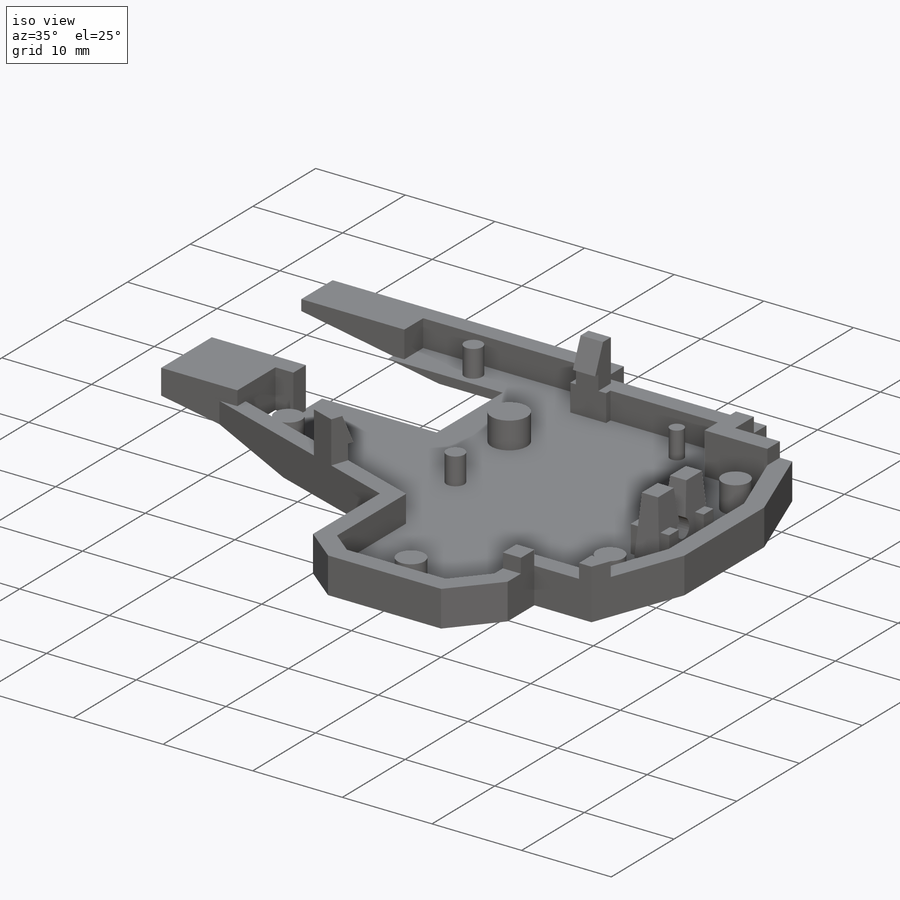
[diagram: iso view]
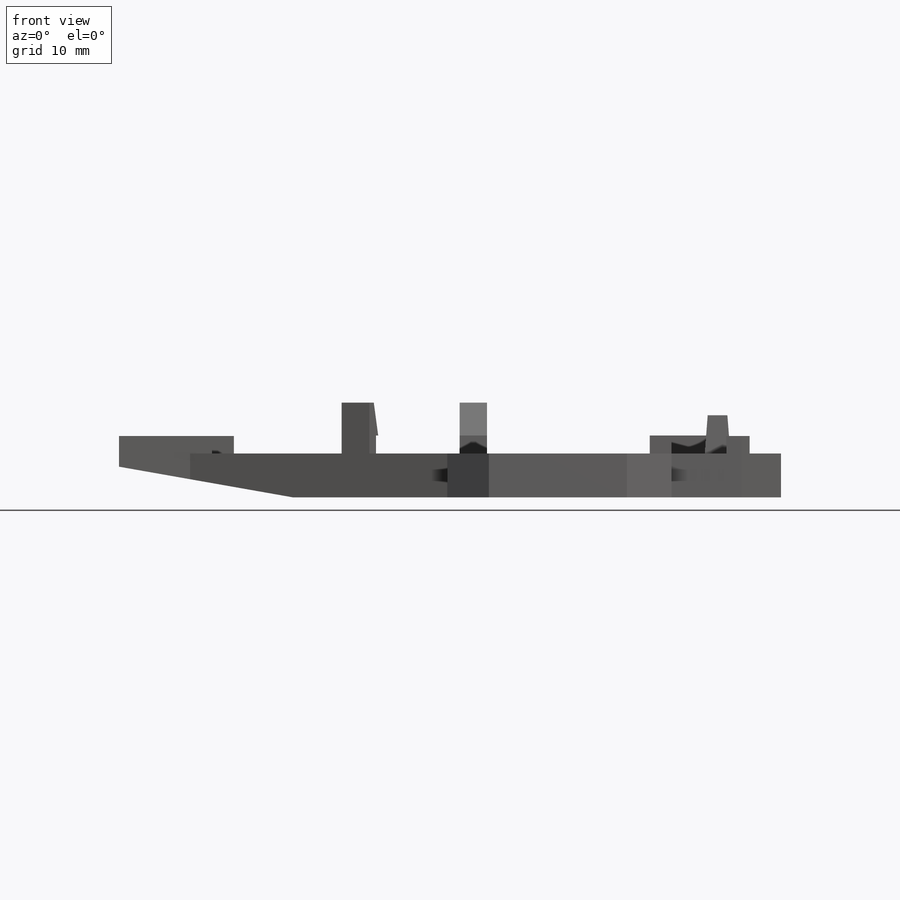
[diagram: front view]
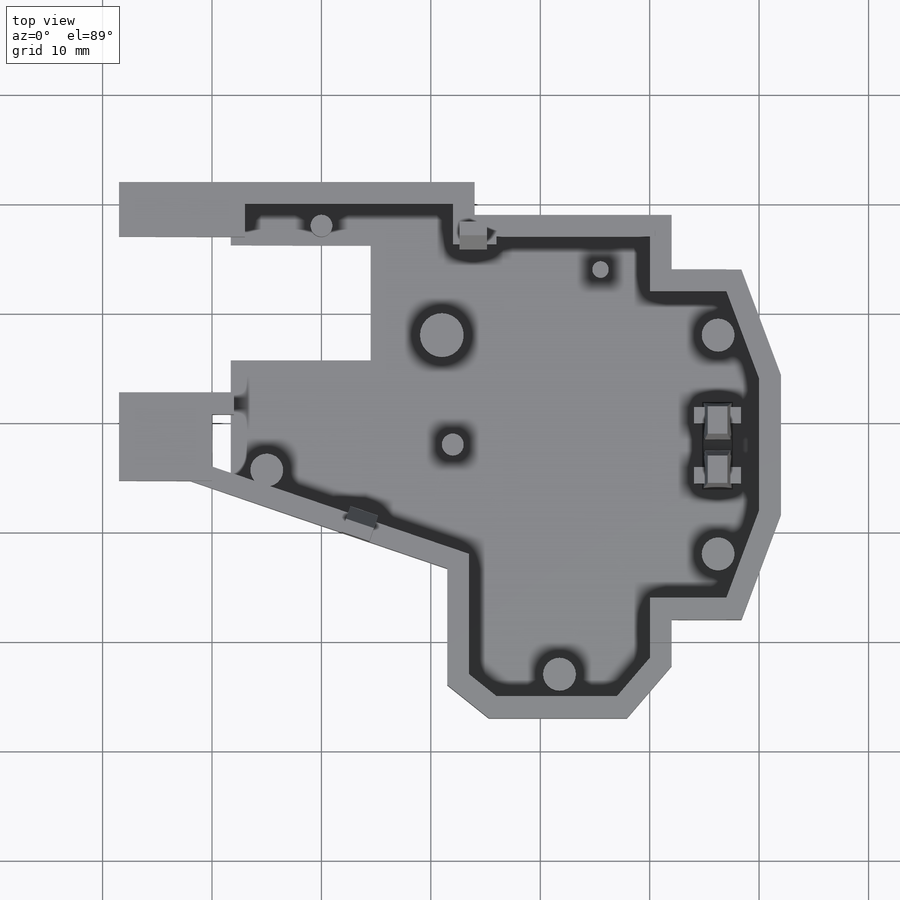
[diagram: top view]
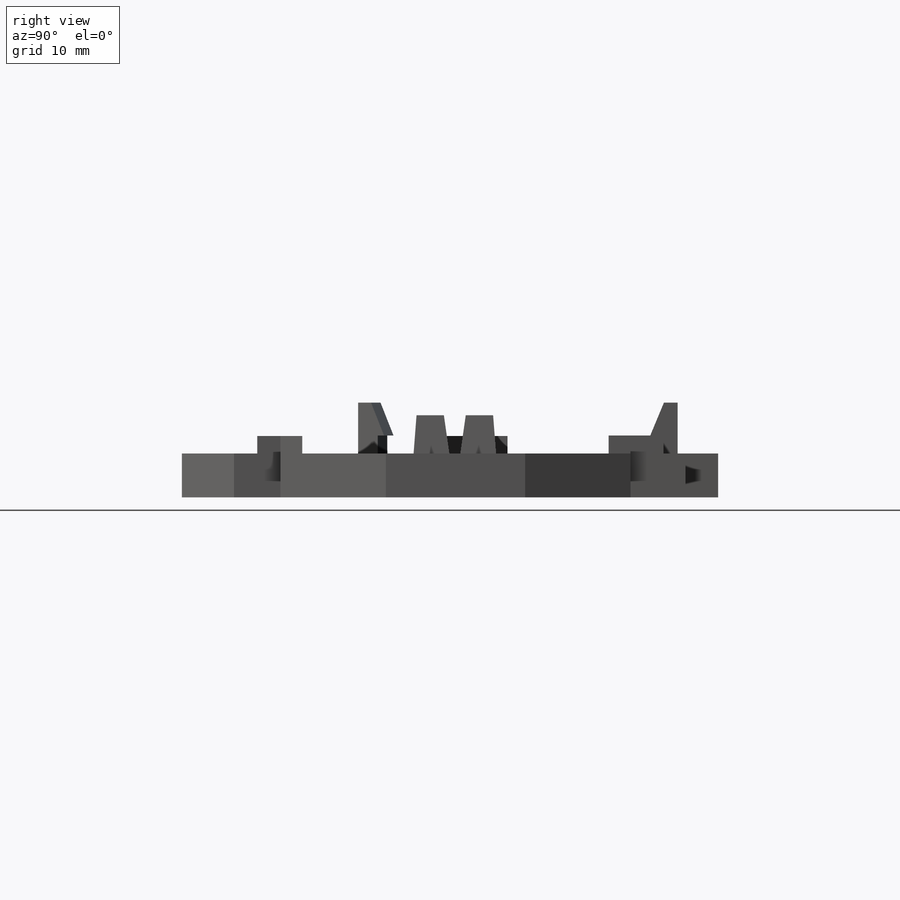
[diagram: right view]
SOLIDWORKS PART (.sldprt)
format: sldprt  version: not decoded by parser v0  size: 1,748,480 bytes
history: native  units: mm
features: sketch x81, extrude x42, cut_extrude x34, fillet x2, material x1, plane x1 (+12 scaffold rows collapsed)
feature tree (173):
  scaffold x12  (default folders/planes/origin — collapsed)
  material  "Material <not specified>"
  sketch  "Sketch13"  dims[c1.D1=45.0mm c1.D2=61.0mm c2.D1=50.0mm]
  extrude  "Boss-Extrude4"  Depth=1.6mm
  sketch  "Sketch14"  dims[D1=10.0mm D2=8.0mm]
  cut_extrude  "Cut-Extrude6"  [1 undecoded]
  sketch  "Sketch15"  dims[D1=3.0mm]
  cut_extrude  "Cut-Extrude7"  [1 undecoded]
  sketch  "Sketch16"  dims[D1=0.7mm D2=4.0mm]
  cut_extrude  "Cut-Extrude8"  [1 undecoded]
  sketch  "Sketch17"  dims[D1=7.0mm]
  cut_extrude  "Cut-Extrude9"  [1 undecoded]
  sketch  "Sketch18"  dims[D1=28.0mm]
  cut_extrude  "Cut-Extrude10"  [1 undecoded]
  sketch  "Sketch21"  dims[D1=8.0mm]
  cut_extrude  "Cut-Extrude11"  [1 undecoded]
  sketch  "Sketch22"  dims[D1=2.0mm D2=3.0mm]
  cut_extrude  "Cut-Extrude12"  [1 undecoded]
  sketch  "Sketch23"  dims[D1=4.0mm]
  cut_extrude  "Cut-Extrude13"  [1 undecoded]
  sketch  "Sketch24"  dims[D1=11.0mm]
  cut_extrude  "Cut-Extrude14"  [1 undecoded]
  sketch  "Sketch25"  dims[D1=2.8mm D2=8.0mm]
  cut_extrude  "Cut-Extrude15"  [1 undecoded]
  sketch  "Sketch28"  dims[D1=2.0mm]
  extrude  "Boss-Extrude6"  Depth=6mm
  sketch  "Sketch30"  dims[D1=0.0mm]
  extrude  "Boss-Extrude7"  Depth=3.5mm
  sketch  "Sketch31"  dims[D1=0.0mm]
  cut_extrude  "Cut-Extrude16"  Depth=4.6mm
  sketch  "Sketch32"  dims[D1=0.0mm]
  extrude  "Boss-Extrude8"  Depth=4.6mm
  sketch  "Sketch35"  dims[D1=0.5mm]
  cut_extrude  "Cut-Extrude18"  Depth=4.6mm
  sketch  "Sketch37"  dims[D1=1.0mm]
  cut_extrude  "Cut-Extrude19"  Depth=4.6mm
  sketch  "Sketch39"  dims[D1=0.5mm]
  cut_extrude  "Cut-Extrude20"  Depth=4.6mm
  sketch  "Sketch41"  dims[D1=0.5mm]
  cut_extrude  "Cut-Extrude21"  [1 undecoded]
  sketch  "Sketch43"
  extrude  "Boss-Extrude9"  Depth=4.6mm
  sketch  "Sketch44"  dims[D1=1.5mm]
  extrude  "Boss-Extrude11"  Depth=3mm
  sketch  "Sketch45"  dims[D1=5.0mm]
  extrude  "Boss-Extrude12"  Depth=3mm
  sketch  "Sketch46"  dims[D1=2.5mm]
  extrude  "Boss-Extrude13"  Depth=1.65mm
  sketch  "Sketch47"
  extrude  "Boss-Extrude14"  [1 undecoded]
  sketch  "Sketch48"
  cut_extrude  "Cut-Extrude22"  [1 undecoded]
  sketch  "Sketch49"
  extrude  "Boss-Extrude15"  Depth=13mm
  sketch  "Sketch50"
  extrude  "Boss-Extrude16"  [1 undecoded]
  sketch  "Sketch51"
  extrude  "Boss-Extrude17"  Depth=15.6mm
  sketch  "Sketch52"  dims[D1=0.0mm]
  cut_extrude  "Cut-Extrude23"  [1 undecoded]
  sketch  "Sketch53"
  extrude  "Boss-Extrude18"  Depth=1.6mm
  sketch  "Sketch55"  dims[D1=2.5mm]
  extrude  "Boss-Extrude20"  Depth=3mm
  sketch  "Sketch56"
  cut_extrude  "Cut-Extrude24"  Depth=3mm
  sketch  "Sketch58"  dims[c1.D1=10.5mm c1.D2=8.5mm c1.D3=20.0mm c2.D1=2.0mm]
  cut_extrude  "Cut-Extrude29"  Depth=1mm
  sketch  "Sketch60"  dims[D1=24.0mm]
  extrude  "Boss-Extrude21"  [1 undecoded]
  sketch  "Sketch61"  dims[D1=0.0mm]
  extrude  "Boss-Extrude22"  [1 undecoded]
  sketch  "Sketch62"  dims[D1=2.0mm]
  cut_extrude  "Cut-Extrude30"  [1 undecoded]
  sketch  "Sketch63"  dims[D1=0.0mm]
  cut_extrude  "Cut-Extrude31"  [1 undecoded]
  sketch  "Sketch64"
  cut_extrude  "Cut-Extrude32"  [1 undecoded]
  sketch  "Sketch65"  dims[D1=0.0mm]
  extrude  "Boss-Extrude23"  [1 undecoded]
  sketch  "Sketch66"
  extrude  "Boss-Extrude24"  Depth=1.6mm
  sketch  "Sketch67"  dims[D1=2.5mm]
  extrude  "Boss-Extrude25"  Depth=3mm
  sketch  "Sketch68"
  cut_extrude  "Cut-Extrude33"  Depth=3mm
  sketch  "Sketch69"
  extrude  "Boss-Extrude26"  [1 undecoded]
  sketch  "Sketch70"
  cut_extrude  "Cut-Extrude34"  Depth=3mm
  sketch  "Sketch71"  dims[D1=2.5mm]
  extrude  "Boss-Extrude27"  Depth=3mm
  sketch  "Sketch72"
  cut_extrude  "Cut-Extrude35"  Depth=3mm
  sketch  "Sketch73"  dims[D1=0.0mm]
  extrude  "Boss-Extrude28"  [1 undecoded]
  sketch  "Sketch74"  dims[D1=9.5mm]
  cut_extrude  "Cut-Extrude36"  Depth=3mm
  fillet  "Fillet8"  Radius=1mm
  sketch  "Sketch76"  dims[D1=14.5mm]
  extrude  "Boss-Extrude29"  Depth=14.5mm
  sketch  "Sketch79"  dims[D1=0.0mm]
  extrude  "Boss-Extrude30"  Depth=2mm
  sketch  "Sketch80"  dims[D1=0.0mm]
  cut_extrude  "Cut-Extrude37"  Depth=2mm
  sketch  "Sketch83"  dims[D1=0.0mm]
  extrude  "Boss-Extrude31"  [1 undecoded]
  sketch  "Sketch85"
  extrude  "Boss-Extrude33"  [1 undecoded]
  sketch  "Sketch86"  dims[D1=0.0mm]
  extrude  "Boss-Extrude34"  [1 undecoded]
  sketch  "Sketch87"  dims[D1=0.0mm]
  extrude  "Boss-Extrude35"  [1 undecoded]
  sketch  "Sketch88"
  extrude  "Boss-Extrude36"  Depth=1.6mm
  sketch  "Sketch90"  dims[D1=0.0mm]
  extrude  "Boss-Extrude37"  Depth=1.6mm
  sketch  "Sketch93"
  extrude  "Boss-Extrude38"  Depth=0.5mm
  sketch  "Sketch94"  dims[D1=2.0mm]
  extrude  "Boss-Extrude39"  Depth=15.6mm
  sketch  "Sketch96"  dims[D1=0.0mm]
  extrude  "Boss-Extrude40"  Depth=0.5mm
  sketch  "Sketch97"  dims[D1=2.0mm]
  extrude  "Boss-Extrude41"  [1 undecoded]
  sketch  "Sketch98"  dims[D1=2.0mm]
  extrude  "Boss-Extrude42"  [1 undecoded]
  sketch  "Sketch99"  dims[D1=0.0mm]
  extrude  "Boss-Extrude43"  [1 undecoded]
  sketch  "Sketch100"  dims[D1=2.0mm]
  extrude  "Boss-Extrude45"  [1 undecoded]
  sketch  "Sketch101"  dims[D1=2.0mm]
  extrude  "Boss-Extrude46"  [1 undecoded]
  sketch  "Sketch102"  dims[D1=2.0mm]
  extrude  "Boss-Extrude47"  [1 undecoded]
  sketch  "Sketch103"  dims[D1=2.0mm]
  extrude  "Boss-Extrude48"  [1 undecoded]
  fillet  "Fillet9"  Radius=2mm
  sketch  "Sketch105"  dims[D1=1.0mm]
  cut_extrude  "Cut-Extrude38"  Depth=3mm
  sketch  "Sketch106"  dims[D1=2.0mm]
  cut_extrude  "Cut-Extrude39"  [1 undecoded]
  sketch  "Sketch107"
  cut_extrude  "Cut-Extrude40"  [1 undecoded]
  sketch  "Sketch111"
  sketch  "Sketch113"
  cut_extrude  "Cut-Extrude41"  [1 undecoded]
  sketch  "Sketch114"
  cut_extrude  "Cut-Extrude42"  [1 undecoded]
  sketch  "Sketch115"  dims[D1=0.0mm D2=0.0mm]
  extrude  "Boss-Extrude49"  Depth=6.5mm
  sketch  "Sketch116"
  cut_extrude  "Cut-Extrude43"  Depth=6.5mm
  sketch  "Sketch117"
  extrude  "Boss-Extrude50"  [1 undecoded]
  sketch  "Sketch118"  dims[D1=0.5mm]
  sketch  "Sketch119"  dims[D1=~15.879589mm]
  sketch  "Sketch120"
  plane  "Plane1"
  sketch  "Sketch122"
  cut_extrude  "Cut-Extrude44"  [1 undecoded]
  sketch  "Sketch123"
decode coverage: 93 of 159 modeling features carry decoded parameters
note: ~ marks probable driven/reference dimensions
note: 40 parameter values undecoded
summary: no parameter record found for 40 features
note: suppression state not decoded; provenance and decode notes live in map.json
